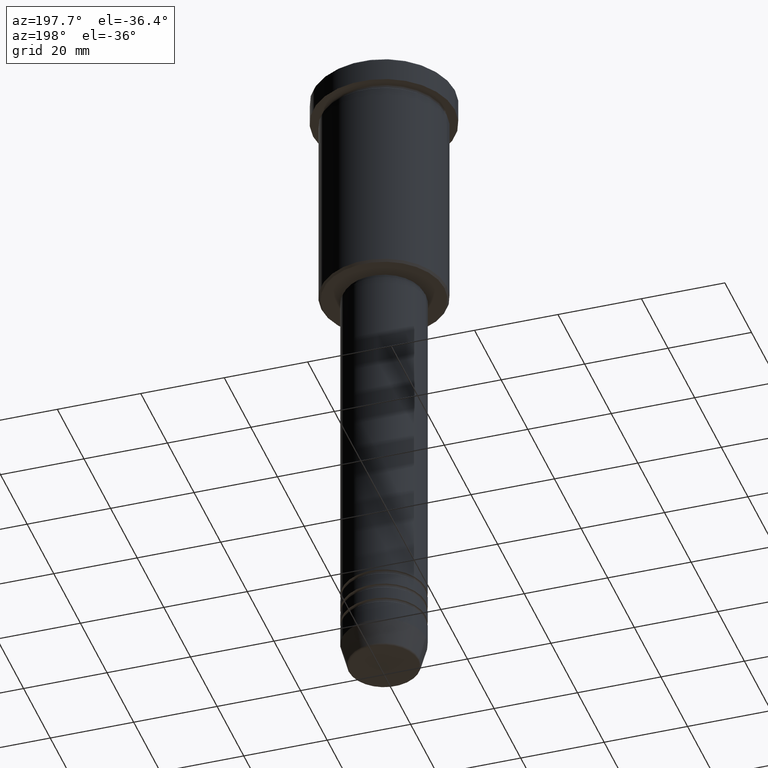
[diagram: clean part render]
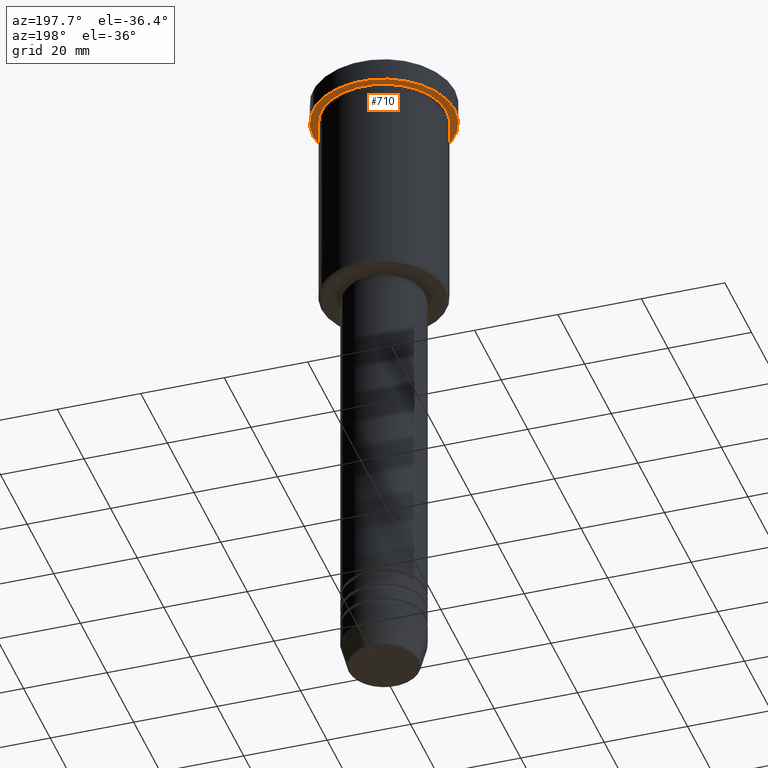
[diagram: same view with one face highlighted and labeled with its STEP entity id]
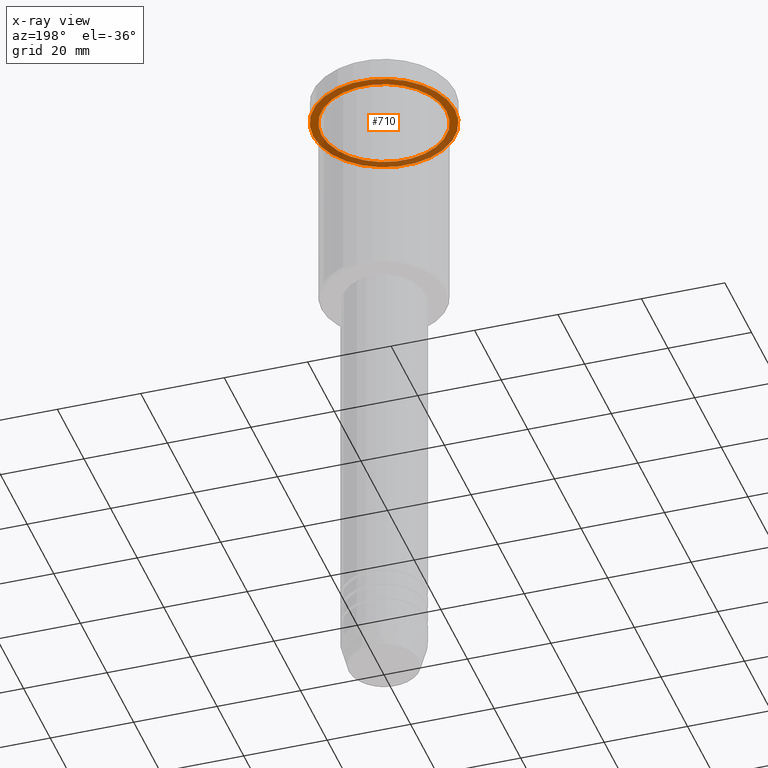
[diagram: x-ray of the same camera — body ghosted, the highlighted face saturated]
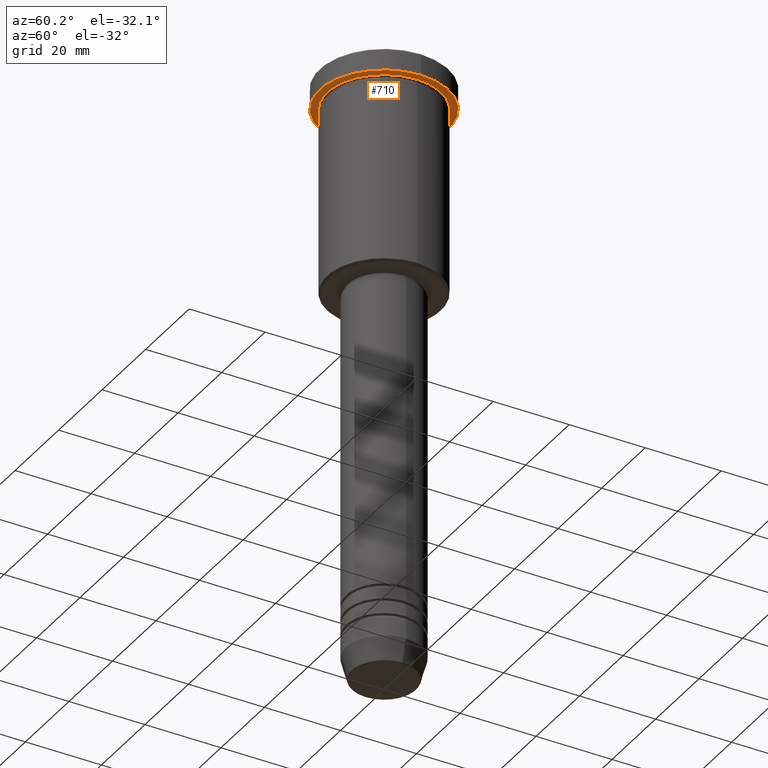
[diagram: same view with one face highlighted and labeled with its STEP entity id]
A machine part, auxiliary view. The second image highlights one B-rep face of the part: STEP entity #710.
The next image is the same camera in x-ray: the body ghosted, the highlighted face saturated — about 34% of this face is hidden behind the body in this view.
A second angle (auxiliary view) of the same face is appended — the face is thin or edge-on in the first view.
In plain terms, the highlighted planar face has unit normal (0, 0, -1).
Its self-contained STEP definition (entity closure, byte-faithful):
#53 = VERTEX_POINT ( 'NONE', #1011 ) ;
#81 = CIRCLE ( 'NONE', #285, 17.00000000000000000 ) ;
#99 = DIRECTION ( 'NONE',  ( -1.000000000000000000, 0.000000000000000000, 0.000000000000000000 ) ) ;
#118 = VERTEX_POINT ( 'NONE', #594 ) ;
#144 = CARTESIAN_POINT ( 'NONE',  ( 17.00000000000000000, 0.000000000000000000, -5.999999999999994671 ) ) ;
#195 = EDGE_CURVE ( 'NONE', #854, #53, #1123, .T. ) ;
#208 = DIRECTION ( 'NONE',  ( -0.000000000000000000, -0.000000000000000000, 1.000000000000000000 ) ) ;
#226 = FACE_BOUND ( 'NONE', #392, .T. ) ;
#273 = ORIENTED_EDGE ( 'NONE', *, *, #503, .F. ) ;
#285 = AXIS2_PLACEMENT_3D ( 'NONE', #500, #662, #399 ) ;
#392 = EDGE_LOOP ( 'NONE', ( #876, #678 ) ) ;
#399 = DIRECTION ( 'NONE',  ( 1.000000000000000000, 0.000000000000000000, 0.000000000000000000 ) ) ;
#402 = EDGE_CURVE ( 'NONE', #1153, #118, #1066, .T. ) ;
#496 = DIRECTION ( 'NONE',  ( -1.000000000000000000, 0.000000000000000000, -0.000000000000000000 ) ) ;
#500 = CARTESIAN_POINT ( 'NONE',  ( 0.000000000000000000, 0.000000000000000000, -5.999999999999994671 ) ) ;
#503 = EDGE_CURVE ( 'NONE', #53, #854, #81, .T. ) ;
#507 = EDGE_CURVE ( 'NONE', #118, #1153, #1148, .T. ) ;
#560 = CARTESIAN_POINT ( 'NONE',  ( 0.000000000000000000, 0.000000000000000000, -5.999999999999994671 ) ) ;
#573 = AXIS2_PLACEMENT_3D ( 'NONE', #560, #925, #99 ) ;
#594 = CARTESIAN_POINT ( 'NONE',  ( -15.00000000000000000, 0.000000000000000000, -5.999999999999994671 ) ) ;
#662 = DIRECTION ( 'NONE',  ( -0.000000000000000000, -0.000000000000000000, 1.000000000000000000 ) ) ;
#678 = ORIENTED_EDGE ( 'NONE', *, *, #402, .T. ) ;
#710 = ADVANCED_FACE ( 'NONE', ( #226, #852 ), #1124, .T. ) ;
#738 = CARTESIAN_POINT ( 'NONE',  ( 15.00000000000000000, 1.836970198721029589E-15, -5.999999999999994671 ) ) ;
#753 = DIRECTION ( 'NONE',  ( 1.000000000000000000, 0.000000000000000000, 0.000000000000000000 ) ) ;
#766 = CARTESIAN_POINT ( 'NONE',  ( 0.000000000000000000, 17.00000000000000000, -5.999999999999994671 ) ) ;
#789 = AXIS2_PLACEMENT_3D ( 'NONE', #1044, #1028, #1037 ) ;
#798 = EDGE_LOOP ( 'NONE', ( #959, #273 ) ) ;
#839 = AXIS2_PLACEMENT_3D ( 'NONE', #766, #873, #496 ) ;
#852 = FACE_OUTER_BOUND ( 'NONE', #798, .T. ) ;
#854 = VERTEX_POINT ( 'NONE', #144 ) ;
#873 = DIRECTION ( 'NONE',  ( 0.000000000000000000, 0.000000000000000000, -1.000000000000000000 ) ) ;
#876 = ORIENTED_EDGE ( 'NONE', *, *, #507, .T. ) ;
#925 = DIRECTION ( 'NONE',  ( -0.000000000000000000, -0.000000000000000000, 1.000000000000000000 ) ) ;
#959 = ORIENTED_EDGE ( 'NONE', *, *, #195, .F. ) ;
#1011 = CARTESIAN_POINT ( 'NONE',  ( -17.00000000000000000, 2.081899558550500280E-15, -5.999999999999994671 ) ) ;
#1019 = CARTESIAN_POINT ( 'NONE',  ( 0.000000000000000000, 0.000000000000000000, -5.999999999999994671 ) ) ;
#1028 = DIRECTION ( 'NONE',  ( -0.000000000000000000, -0.000000000000000000, 1.000000000000000000 ) ) ;
#1037 = DIRECTION ( 'NONE',  ( -1.000000000000000000, 0.000000000000000000, 0.000000000000000000 ) ) ;
#1044 = CARTESIAN_POINT ( 'NONE',  ( 0.000000000000000000, 0.000000000000000000, -5.999999999999994671 ) ) ;
#1066 = CIRCLE ( 'NONE', #573, 15.00000000000000000 ) ;
#1081 = AXIS2_PLACEMENT_3D ( 'NONE', #1019, #208, #753 ) ;
#1123 = CIRCLE ( 'NONE', #1081, 17.00000000000000000 ) ;
#1124 = PLANE ( 'NONE',  #839 ) ;
#1148 = CIRCLE ( 'NONE', #789, 15.00000000000000000 ) ;
#1153 = VERTEX_POINT ( 'NONE', #738 ) ;